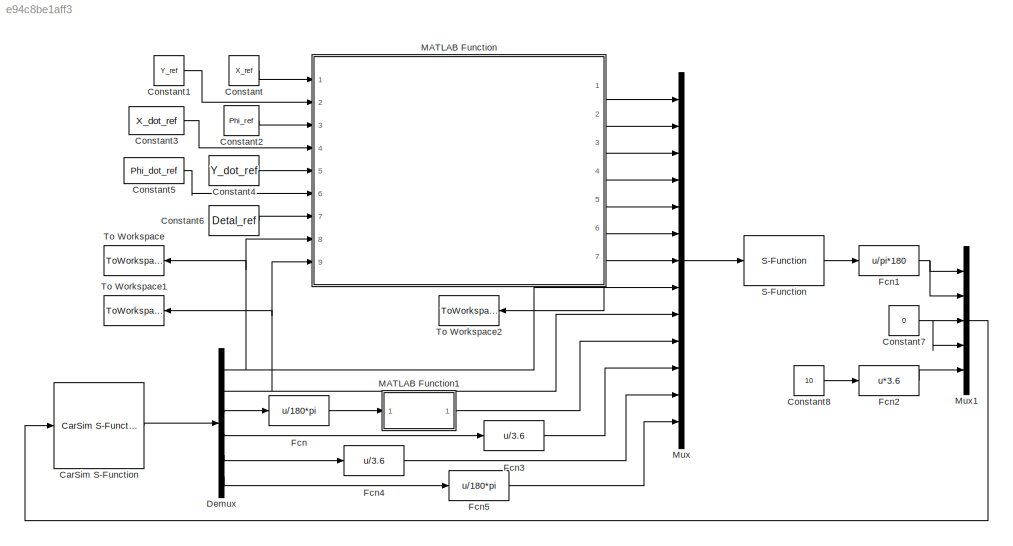
MODEL slx_e94c8be1aff3
KIND model
CONFIG AbsTol = auto
CONFIG EnableMultiTasking = off
CONFIG FixedStep = auto
CONFIG MaxStep = auto
CONFIG MinStep = auto
CONFIG RelTol = 1e-3
CONFIG SampleTimeConstraint = Unconstrained
CONFIG Solver = VariableStepAuto
CONFIG SolverName = VariableStepAuto
CONFIG StartTime = 0.0
CONFIG StopTime = 40
BLOCK [Reference] CarSim S-Function  REF=Solver_SF/CarSim S-Function
  Ports = [1, 1]
  Priority = 1
  SourceBlock = Solver_SF/CarSim S-Function
  SourceType = Vehicle math model library
BLOCK [Constant] Constant
  Value = X_ref
BLOCK [Constant] Constant1
  Value = Y_ref
BLOCK [Constant] Constant2
  Value = Phi_ref
BLOCK [Constant] Constant3
  Value = X_dot_ref
BLOCK [Constant] Constant4
  Value = Y_dot_ref
BLOCK [Constant] Constant5
  Value = Phi_dot_ref
BLOCK [Constant] Constant6
  Value = Detal_ref
BLOCK [Constant] Constant7
  Value = 0
BLOCK [Constant] Constant8
  Value = 10
BLOCK [Demux] Demux
  DisplayOption = bar
  Outputs = 6
  Ports = [1, 6]
BLOCK [Fcn] Fcn
  Expr = u/180*pi
BLOCK [Fcn] Fcn1
  Expr = u/pi*180
BLOCK [Fcn] Fcn2
  Expr = u*3.6
BLOCK [Fcn] Fcn3
  Expr = u/3.6
BLOCK [Fcn] Fcn4
  Expr = u/3.6
BLOCK [Fcn] Fcn5
  Expr = u/180*pi
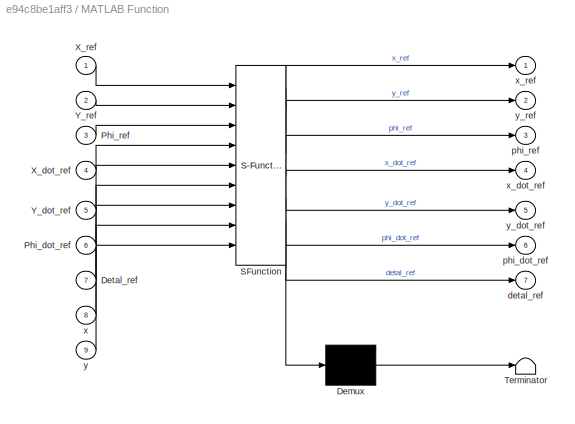
BLOCK [SubSystem] MATLAB Function
  ErrorFcn = Stateflow.Translate.translate
  PermitHierarchicalResolution = ExplicitOnly
  Ports = [9, 7]
  RequestExecContextInheritance = off
  SFBlockType = MATLAB Function
  TreatAsAtomicUnit = on
BLOCK [Demux] MATLAB Function/ Demux 
  Outputs = 1
  Ports = [1, 1]
BLOCK [S-Function] MATLAB Function/ SFunction 
  EnableBusSupport = on
  FunctionName = sf_sfun
  PortCounts = [9 8]
  Ports = [9, 8]
  SFcnIsStateOwnerBlock = off
  SFunctionDeploymentMode = off
  Tag = Stateflow S-Function dyn_model 2
BLOCK [Terminator] MATLAB Function/ Terminator 
BLOCK [Inport] MATLAB Function/Detal_ref
  IconDisplay = Port number
  Port = 7
BLOCK [Inport] MATLAB Function/Phi_dot_ref
  IconDisplay = Port number
  Port = 6
BLOCK [Inport] MATLAB Function/Phi_ref
  IconDisplay = Port number
  Port = 3
BLOCK [Inport] MATLAB Function/X_dot_ref
  IconDisplay = Port number
  Port = 4
BLOCK [Inport] MATLAB Function/X_ref
  IconDisplay = Port number
BLOCK [Inport] MATLAB Function/Y_dot_ref
  IconDisplay = Port number
  Port = 5
BLOCK [Inport] MATLAB Function/Y_ref
  IconDisplay = Port number
  Port = 2
BLOCK [Outport] MATLAB Function/detal_ref
  IconDisplay = Port number
  Port = 7
BLOCK [Outport] MATLAB Function/phi_dot_ref
  IconDisplay = Port number
  Port = 6
BLOCK [Outport] MATLAB Function/phi_ref
  IconDisplay = Port number
  Port = 3
BLOCK [Inport] MATLAB Function/x
  IconDisplay = Port number
  Port = 8
BLOCK [Outport] MATLAB Function/x_dot_ref
  IconDisplay = Port number
  Port = 4
BLOCK [Outport] MATLAB Function/x_ref
  IconDisplay = Port number
BLOCK [Inport] MATLAB Function/y
  IconDisplay = Port number
  Port = 9
BLOCK [Outport] MATLAB Function/y_dot_ref
  IconDisplay = Port number
  Port = 5
BLOCK [Outport] MATLAB Function/y_ref
  IconDisplay = Port number
  Port = 2
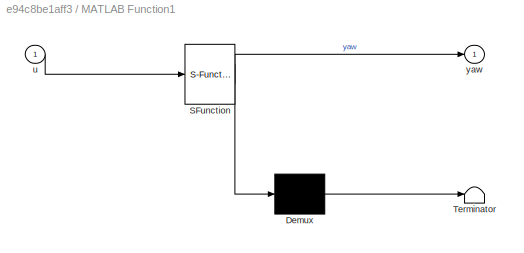
BLOCK [SubSystem] MATLAB Function1
  ErrorFcn = Stateflow.Translate.translate
  PermitHierarchicalResolution = ExplicitOnly
  Ports = [1, 1]
  RequestExecContextInheritance = off
  SFBlockType = MATLAB Function
  TreatAsAtomicUnit = on
BLOCK [Demux] MATLAB Function1/ Demux 
  Outputs = 1
  Ports = [1, 1]
BLOCK [S-Function] MATLAB Function1/ SFunction 
  EnableBusSupport = on
  FunctionName = sf_sfun
  PortCounts = [1 2]
  Ports = [1, 2]
  SFcnIsStateOwnerBlock = off
  SFunctionDeploymentMode = off
  Tag = Stateflow S-Function dyn_model 1
BLOCK [Terminator] MATLAB Function1/ Terminator 
BLOCK [Inport] MATLAB Function1/u
  IconDisplay = Port number
BLOCK [Outport] MATLAB Function1/yaw
  IconDisplay = Port number
BLOCK [Mux] Mux
  DisplayOption = bar
  Inputs = 13
  Ports = [13, 1]
BLOCK [Mux] Mux1
  DisplayOption = bar
  Inputs = 5
  Ports = [5, 1]
BLOCK [S-Function] S-Function
  EnableBusSupport = off
  FunctionName = mpc_controller
  Ports = [1, 1]
  SFcnIsStateOwnerBlock = off
  SFunctionDeploymentMode = off
BLOCK [ToWorkspace] To Workspace
  FixptAsFi = on
  MaxDataPoints = inf
  Ports = [1]
  SampleTime = 0.1
  Save2DSignal = 2-D array (concatenate along first dimension)
  VariableName = car_x
BLOCK [ToWorkspace] To Workspace1
  FixptAsFi = on
  MaxDataPoints = inf
  Ports = [1]
  SampleTime = 0.1
  Save2DSignal = 2-D array (concatenate along first dimension)
  VariableName = car_y
BLOCK [ToWorkspace] To Workspace2
  FixptAsFi = on
  MaxDataPoints = inf
  Ports = [1]
  SampleTime = 0.1
  Save2DSignal = 2-D array (concatenate along first dimension)
  VariableName = car_steer
LINE CarSim S-Function:1 -> Demux:1
LINE Constant1:1 -> MATLAB Function:2
LINE Constant2:1 -> MATLAB Function:3
LINE Constant3:1 -> MATLAB Function:4
LINE Constant4:1 -> MATLAB Function:5
LINE Constant5:1 -> MATLAB Function:6
LINE Constant6:1 -> MATLAB Function:7
NET Constant7:1 -> Mux1:3, Mux1:4
LINE Constant8:1 -> Fcn2:1
LINE Constant:1 -> MATLAB Function:1
NET Demux:1 -> MATLAB Function:8, Mux:8, To Workspace:1
NET Demux:2 -> MATLAB Function:9, Mux:9, To Workspace1:1
LINE Demux:3 -> Fcn:1
LINE Demux:4 -> Fcn3:1
LINE Demux:5 -> Fcn4:1
LINE Demux:6 -> Fcn5:1
NET Fcn1:1 -> Mux1:1, Mux1:2
LINE Fcn2:1 -> Mux1:5
LINE Fcn3:1 -> Mux:11
LINE Fcn4:1 -> Mux:12
LINE Fcn5:1 -> Mux:13
LINE Fcn:1 -> MATLAB Function1:1
LINE MATLAB Function1:1 -> Mux:10
LINE MATLAB Function:1 -> Mux:1
LINE MATLAB Function:2 -> Mux:2
LINE MATLAB Function:3 -> Mux:3
LINE MATLAB Function:4 -> Mux:4
LINE MATLAB Function:5 -> Mux:5
LINE MATLAB Function:6 -> Mux:6
NET MATLAB Function:7 -> Mux:7, To Workspace2:1
LINE Mux1:1 -> CarSim S-Function:1
LINE Mux:1 -> S-Function:1
LINE S-Function:1 -> Fcn1:1
note: NET lines group one-source signal fan-out (src -> all destinations, sorted); 1:1 wires keep LINE
CHART MATLAB Function1 states=1 transitions=1
  STATE_LABEL 'eML_blk_kernel()'
  STATE_LABEL 'SCRIPT:\nfunction yaw = angle_norm(u)\nwhile u<-2*pi\n    u=u+2*pi;\nend\nwhile u>2*pi\n    u=u-2*pi;\nend\nyaw = u;\n'
CHART MATLAB Function states=1 transitions=1
  STATE_LABEL 'eML_blk_kernel()'
  STATE_LABEL 'SCRIPT:\nfunction [x_ref,y_ref,phi_ref,x_dot_ref,y_dot_ref,phi_dot_ref,detal_ref]...\n    = get_ref_data(X_ref,Y_ref,Phi_ref,X_dot_ref,Y_dot_ref,Phi_dot_ref,Detal_ref,x,y)\n    N=size(X_ref,1);\n    min_dis=99999;\n    index=1;\n    for i=1:N\n        cur_dis=sqrt( (x-X_ref(i))^2+(y-Y_ref(i))^2 );\n        if cur_dis<min_dis\n            index=i;\n            min_dis=cur_dis;\n        end\n    end\n    [x_ref,...<+194ch>'
